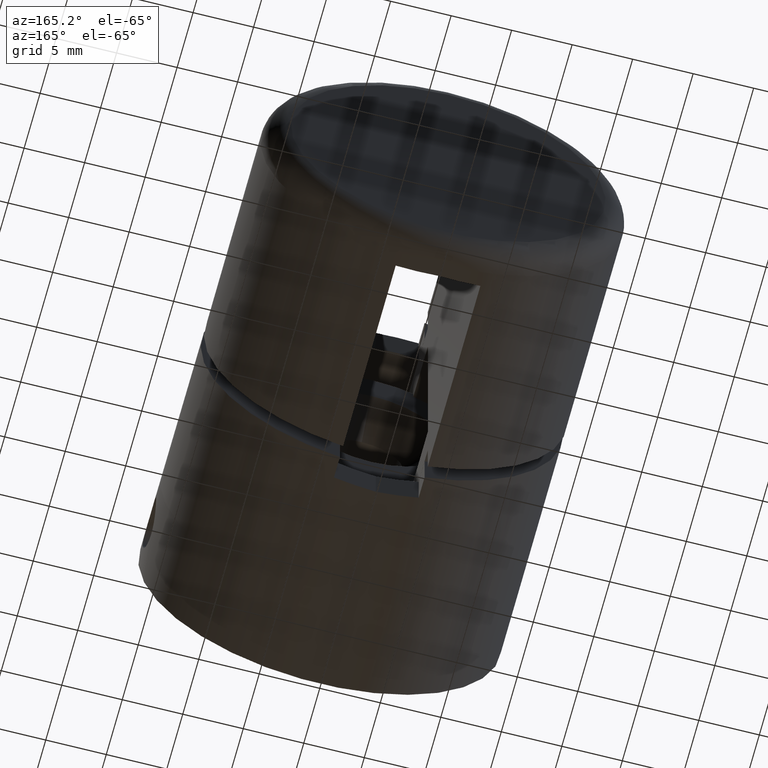
[diagram: clean part render]
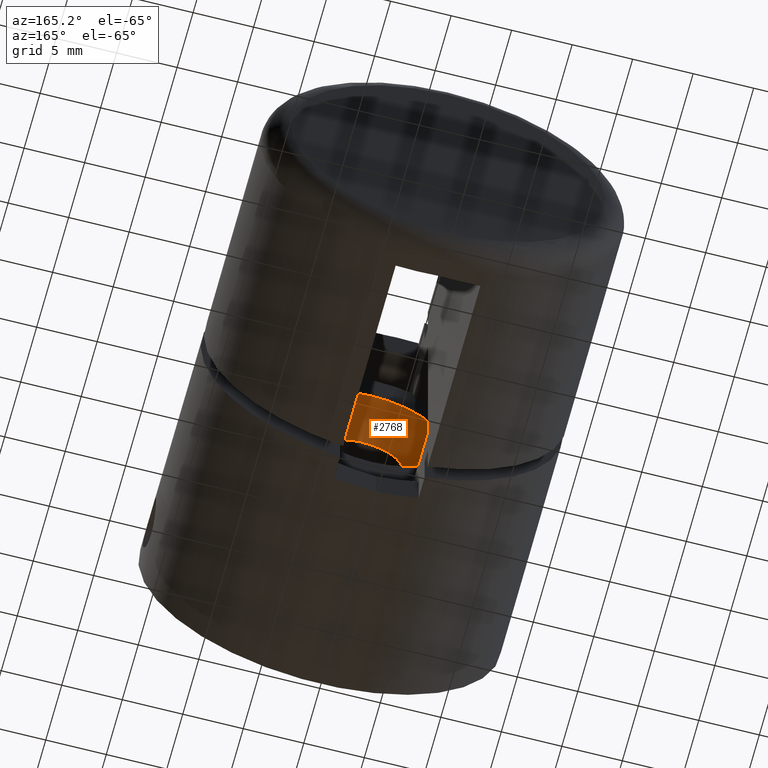
[diagram: same view with one face highlighted and labeled with its STEP entity id]
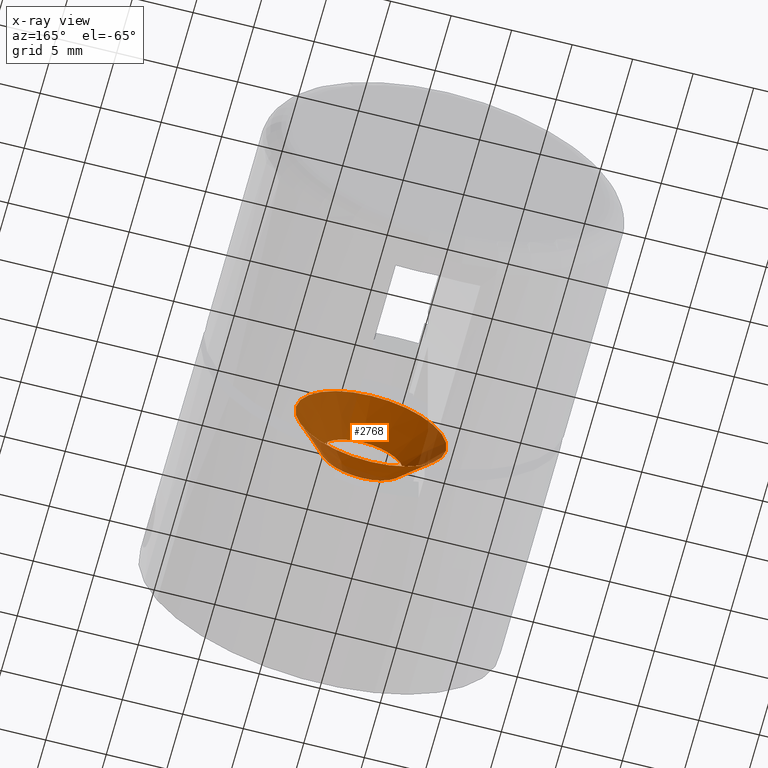
[diagram: x-ray of the same camera — body ghosted, the highlighted face saturated]
A machine part, auxiliary view. The second image highlights one B-rep face of the part: STEP entity #2768.
The next image is the same camera in x-ray: the body ghosted, the highlighted face saturated — about 45% of this face is hidden behind the body in this view.
In plain terms, the highlighted conical surface has half-angle 45 deg.
Its self-contained STEP definition (entity closure, byte-faithful):
#945 = CONICAL_SURFACE ( 'NONE', #15544, 6.250000000000000000, 0.7853981633974487200 ) ;
#1106 = DIRECTION ( 'NONE',  ( 0.0000000000000000000, 0.0000000000000000000, 1.000000000000000000 ) ) ;
#1225 = VERTEX_POINT ( 'NONE', #15305 ) ;
#1634 = VERTEX_POINT ( 'NONE', #10550 ) ;
#1655 = AXIS2_PLACEMENT_3D ( 'NONE', #8757, #2459, #1106 ) ;
#1691 = AXIS2_PLACEMENT_3D ( 'NONE', #10272, #7752, #5094 ) ;
#2346 = FACE_OUTER_BOUND ( 'NONE', #12521, .T. ) ;
#2459 = DIRECTION ( 'NONE',  ( 0.0000000000000000000, -1.000000000000000000, 0.0000000000000000000 ) ) ;
#2768 = ADVANCED_FACE ( 'NONE', ( #8240, #2346 ), #945, .F. ) ;
#2992 = EDGE_CURVE ( 'NONE', #1225, #1225, #15078, .T. ) ;
#3281 = CARTESIAN_POINT ( 'NONE',  ( 0.0000000000000000000, 16.00000000000000000, 0.0000000000000000000 ) ) ;
#5094 = DIRECTION ( 'NONE',  ( 0.0000000000000000000, 0.0000000000000000000, 1.000000000000000000 ) ) ;
#5651 = CIRCLE ( 'NONE', #1655, 3.399999999999997700 ) ;
#6570 = ORIENTED_EDGE ( 'NONE', *, *, #13320, .T. ) ;
#7752 = DIRECTION ( 'NONE',  ( -0.0000000000000000000, 1.000000000000000000, -0.0000000000000000000 ) ) ;
#8240 = FACE_BOUND ( 'NONE', #8803, .T. ) ;
#8695 = ORIENTED_EDGE ( 'NONE', *, *, #2992, .T. ) ;
#8757 = CARTESIAN_POINT ( 'NONE',  ( 0.0000000000000000000, 13.15000000000000000, 0.0000000000000000000 ) ) ;
#8803 = EDGE_LOOP ( 'NONE', ( #6570 ) ) ;
#9730 = DIRECTION ( 'NONE',  ( 0.0000000000000000000, 0.0000000000000000000, 1.000000000000000000 ) ) ;
#9837 = DIRECTION ( 'NONE',  ( -0.0000000000000000000, 1.000000000000000000, -0.0000000000000000000 ) ) ;
#10272 = CARTESIAN_POINT ( 'NONE',  ( 0.0000000000000000000, 16.00000000000000000, 0.0000000000000000000 ) ) ;
#10550 = CARTESIAN_POINT ( 'NONE',  ( 0.0000000000000000000, 13.15000000000000000, 3.399999999999997700 ) ) ;
#12521 = EDGE_LOOP ( 'NONE', ( #8695 ) ) ;
#13320 = EDGE_CURVE ( 'NONE', #1634, #1634, #5651, .T. ) ;
#15078 = CIRCLE ( 'NONE', #1691, 6.250000000000000000 ) ;
#15305 = CARTESIAN_POINT ( 'NONE',  ( 0.0000000000000000000, 16.00000000000000000, 6.250000000000000000 ) ) ;
#15544 = AXIS2_PLACEMENT_3D ( 'NONE', #3281, #9837, #9730 ) ;